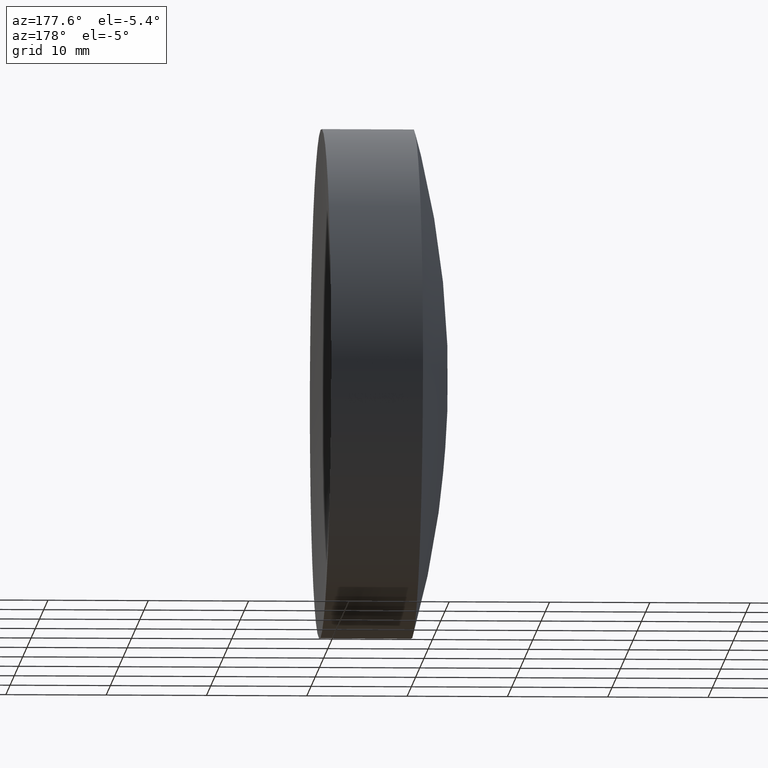
[diagram: clean part render]
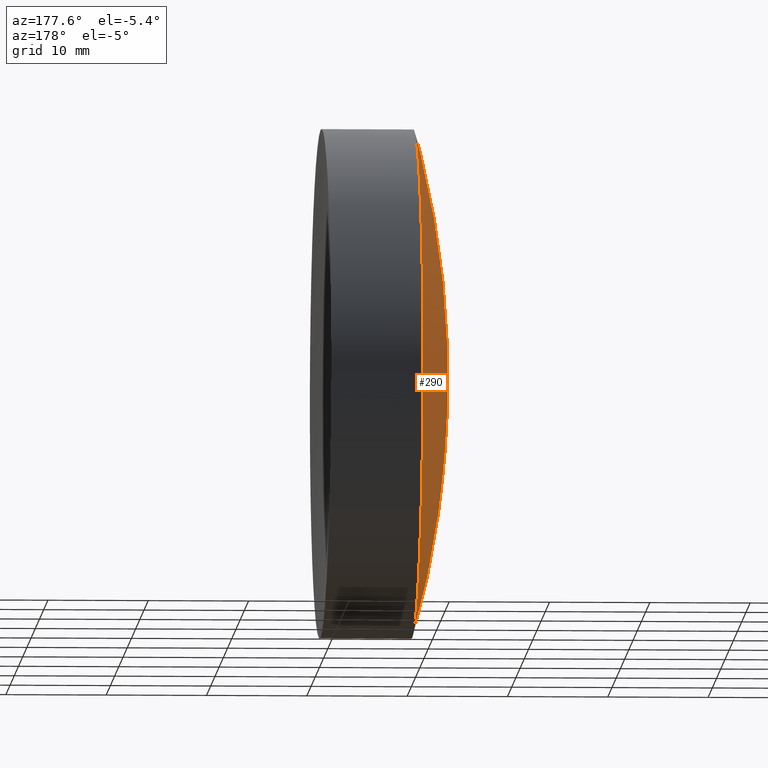
[diagram: same view with one face highlighted and labeled with its STEP entity id]
A machine part, auxiliary view. The second image highlights one B-rep face of the part: STEP entity #290.
In plain terms, the highlighted spherical surface has radius 93.76 mm.
Its self-contained STEP definition (entity closure, byte-faithful):
#4 = CARTESIAN_POINT ( 'NONE',  ( 148.0747689612467800, 0.0000000000000000000, -6.928037612090617800E-014 ) ) ;
#8 = CIRCLE ( 'NONE', #58, 93.76000000000001900 ) ;
#10 = CIRCLE ( 'NONE', #205, 93.76000000000001900 ) ;
#40 = DIRECTION ( 'NONE',  ( 0.0000000000000000000, -1.224646799147353500E-016, 1.000000000000000000 ) ) ;
#57 = DIRECTION ( 'NONE',  ( 0.0000000000000000000, 0.0000000000000000000, 1.000000000000000000 ) ) ;
#58 = AXIS2_PLACEMENT_3D ( 'NONE', #328, #327, #259 ) ;
#78 = CARTESIAN_POINT ( 'NONE',  ( 241.8347689612468200, 0.0000000000000000000, -7.502152031530896200E-014 ) ) ;
#80 = DIRECTION ( 'NONE',  ( 0.0000000000000000000, 1.000000000000000000, 0.0000000000000000000 ) ) ;
#84 = DIRECTION ( 'NONE',  ( -1.000000000000000000, -0.0000000000000000000, -0.0000000000000000000 ) ) ;
#100 = EDGE_CURVE ( 'NONE', #228, #110, #8, .T. ) ;
#110 = VERTEX_POINT ( 'NONE', #4 ) ;
#115 = CIRCLE ( 'NONE', #210, 25.39999999999997000 ) ;
#144 = ORIENTED_EDGE ( 'NONE', *, *, #286, .T. ) ;
#163 = AXIS2_PLACEMENT_3D ( 'NONE', #177, #80, #57 ) ;
#167 = FACE_OUTER_BOUND ( 'NONE', #324, .T. ) ;
#177 = CARTESIAN_POINT ( 'NONE',  ( 241.8347689612468200, 0.0000000000000000000, -7.502152031530896200E-014 ) ) ;
#190 = ORIENTED_EDGE ( 'NONE', *, *, #333, .T. ) ;
#205 = AXIS2_PLACEMENT_3D ( 'NONE', #78, #251, #40 ) ;
#210 = AXIS2_PLACEMENT_3D ( 'NONE', #261, #84, #224 ) ;
#218 = CARTESIAN_POINT ( 'NONE',  ( 151.5808072753462700, 0.0000000000000000000, 25.39999999999994900 ) ) ;
#224 = DIRECTION ( 'NONE',  ( 0.0000000000000000000, 0.0000000000000000000, 1.000000000000000000 ) ) ;
#228 = VERTEX_POINT ( 'NONE', #218 ) ;
#236 = SPHERICAL_SURFACE ( 'NONE', #163, 93.76000000000001900 ) ;
#250 = CARTESIAN_POINT ( 'NONE',  ( 151.5808072753462700, 3.110602869834271300E-015, -25.40000000000002700 ) ) ;
#251 = DIRECTION ( 'NONE',  ( -0.0000000000000000000, 1.000000000000000000, 1.224646799147353200E-016 ) ) ;
#259 = DIRECTION ( 'NONE',  ( 0.0000000000000000000, 0.0000000000000000000, -1.000000000000000000 ) ) ;
#261 = CARTESIAN_POINT ( 'NONE',  ( 151.5808072753462500, 0.0000000000000000000, 0.0000000000000000000 ) ) ;
#274 = VERTEX_POINT ( 'NONE', #250 ) ;
#286 = EDGE_CURVE ( 'NONE', #228, #274, #115, .T. ) ;
#290 = ADVANCED_FACE ( 'NONE', ( #167 ), #236, .T. ) ;
#324 = EDGE_LOOP ( 'NONE', ( #144, #190, #335 ) ) ;
#327 = DIRECTION ( 'NONE',  ( 0.0000000000000000000, -1.000000000000000000, 0.0000000000000000000 ) ) ;
#328 = CARTESIAN_POINT ( 'NONE',  ( 241.8347689612468200, 0.0000000000000000000, -7.502152031530896200E-014 ) ) ;
#333 = EDGE_CURVE ( 'NONE', #274, #110, #10, .T. ) ;
#335 = ORIENTED_EDGE ( 'NONE', *, *, #100, .F. ) ;